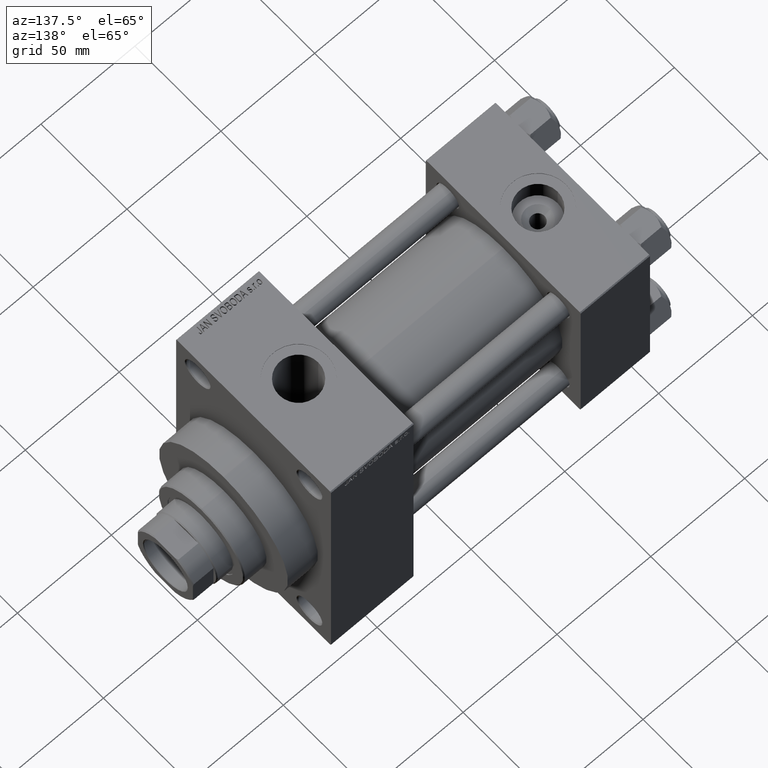
[diagram: clean part render]
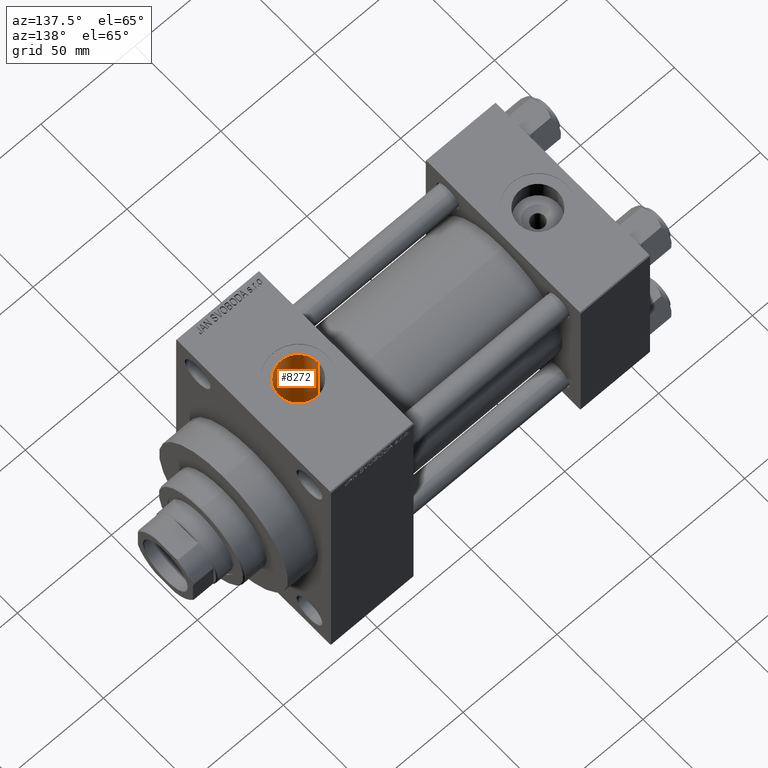
[diagram: same view with one face highlighted and labeled with its STEP entity id]
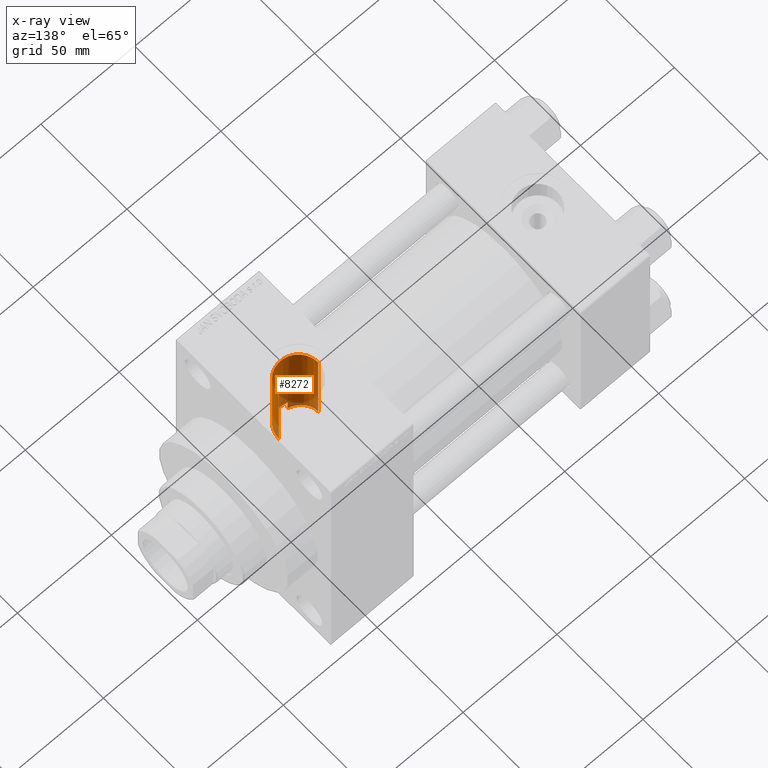
[diagram: x-ray of the same camera — body ghosted, the highlighted face saturated]
A machine part, auxiliary view. The second image highlights one B-rep face of the part: STEP entity #8272.
The next image is the same camera in x-ray: the body ghosted, the highlighted face saturated — about 13% of this face is hidden behind the body in this view.
In plain terms, the highlighted cylindrical surface (edge-blend (fillet) strip) has radius 10.48 mm, axis along (0, 0, -1).
Its self-contained STEP definition (entity closure, byte-faithful):
#1368 = CARTESIAN_POINT ( 'NONE',  ( 156.4799999999999898, -0.4140493469419965211, 30.00000000000001066 ) ) ;
#1399 = ORIENTED_EDGE ( 'NONE', *, *, #35483, .T. ) ;
#1497 = ORIENTED_EDGE ( 'NONE', *, *, #37592, .T. ) ;
#1860 = CARTESIAN_POINT ( 'NONE',  ( 151.8407164529724014, -8.711045480795162277, 28.70853818005239333 ) ) ;
#2327 = CARTESIAN_POINT ( 'NONE',  ( 149.6511764337021475, -9.831921411942651901, 28.34362233849842738 ) ) ;
#3301 = CARTESIAN_POINT ( 'NONE',  ( 142.2166163324468187, -9.788752968036769531, 23.00467774806669397 ) ) ;
#3528 = CARTESIAN_POINT ( 'NONE',  ( 135.9569663818569154, -3.007160148706864433, 24.81987104649663323 ) ) ;
#4183 = VERTEX_POINT ( 'NONE', #16381 ) ;
#4459 = CARTESIAN_POINT ( 'NONE',  ( 136.9226781161778206, -5.266119555344893399, 24.44410166351153890 ) ) ;
#5511 = AXIS2_PLACEMENT_3D ( 'NONE', #16873, #13531, #13764 ) ;
#5606 = VERTEX_POINT ( 'NONE', #8379 ) ;
#7109 = CARTESIAN_POINT ( 'NONE',  ( 135.8813829677837077, -2.742400269040758065, 24.85060264423316667 ) ) ;
#7507 = DIRECTION ( 'NONE',  ( -1.000000000000000000, 0.000000000000000000, 0.000000000000000000 ) ) ;
#8272 = ADVANCED_FACE ( 'NONE', ( #29719 ), #40469, .F. ) ;
#8379 = CARTESIAN_POINT ( 'NONE',  ( 156.4799999999999613, 3.673940397618681979E-15, 30.00000000000000000 ) ) ;
#8790 = CARTESIAN_POINT ( 'NONE',  ( 155.9688766884319193, -3.259248874892655579, 29.82498403132066755 ) ) ;
#8870 = VERTEX_POINT ( 'NONE', #14572 ) ;
#9248 = EDGE_CURVE ( 'NONE', #20263, #10663, #37874, .T. ) ;
#9265 = CARTESIAN_POINT ( 'NONE',  ( 146.8323486893805239, -10.48013219117957107, 28.11025684355166376 ) ) ;
#10241 = CARTESIAN_POINT ( 'NONE',  ( 141.7027284824027618, -9.574030923381073421, 23.09567255457320556 ) ) ;
#10663 = VERTEX_POINT ( 'NONE', #39966 ) ;
#10674 = CARTESIAN_POINT ( 'NONE',  ( 144.3547903624770186, -10.35843936797069453, 28.15511119385354988 ) ) ;
#11173 = CARTESIAN_POINT ( 'NONE',  ( 137.2133851667944100, -5.737667069548111343, 24.33689057242902365 ) ) ;
#12102 = CARTESIAN_POINT ( 'NONE',  ( 142.7400000000000091, -9.960060240781688279, 93.79999999999996874 ) ) ;
#12299 = VECTOR ( 'NONE', #21123, 1000.000000000000000 ) ;
#12612 = CARTESIAN_POINT ( 'NONE',  ( 152.4991569451228770, -8.231478667600764965, 28.84970080865382513 ) ) ;
#13531 = DIRECTION ( 'NONE',  ( -0.000000000000000000, -0.000000000000000000, -1.000000000000000000 ) ) ;
#13677 = VECTOR ( 'NONE', #17934, 1000.000000000000000 ) ;
#13764 = DIRECTION ( 'NONE',  ( 1.000000000000000000, 0.000000000000000000, 0.000000000000000000 ) ) ;
#13793 = CARTESIAN_POINT ( 'NONE',  ( 143.1356366639054443, -10.08955499213376861, 28.25278262901559145 ) ) ;
#14277 = CARTESIAN_POINT ( 'NONE',  ( 138.9710119791482157, -7.792124981740101042, 23.75802442794438107 ) ) ;
#14572 = CARTESIAN_POINT ( 'NONE',  ( 135.5199999999999818, -1.094803260394251466E-14, 70.79999999999996874 ) ) ;
#15210 = CARTESIAN_POINT ( 'NONE',  ( 139.3891897638273178, -8.150065112751539331, 23.63667431967813215 ) ) ;
#15614 = EDGE_CURVE ( 'NONE', #8870, #4183, #24466, .T. ) ;
#15937 = CARTESIAN_POINT ( 'NONE',  ( 156.2826880867322359, -2.065458053724753107, 29.93150493033226311 ) ) ;
#16381 = CARTESIAN_POINT ( 'NONE',  ( 135.5199999999999818, 3.061579607129328475E-15, 25.00000000000000000 ) ) ;
#16425 = CARTESIAN_POINT ( 'NONE',  ( 150.4065122839481603, -9.517374506241294441, 28.45078537450224587 ) ) ;
#16655 = CARTESIAN_POINT ( 'NONE',  ( 156.3561768723853049, -1.659168348792957381, 29.95693324364475529 ) ) ;
#16873 = CARTESIAN_POINT ( 'NONE',  ( 145.9999999999999716, -1.094803260394251466E-14, 70.79999999999996874 ) ) ;
#17141 = CARTESIAN_POINT ( 'NONE',  ( 143.5376865130923250, -10.19514556951083861, 28.21465150049998627 ) ) ;
#17459 = LINE ( 'NONE', #35383, #13677 ) ;
#17476 = B_SPLINE_CURVE_WITH_KNOTS ( 'NONE', 3,
 ( #20714, #1368, #20245, #16655, #15937, #27405, #8790, #20008, #31211, #45309, #31457, #46017, #19756, #45769, #12612, #1860, #20471, #27179, #16425, #2327, #30975, #41963, #45534, #9265, #23825, #38388, #10674, #17141, #13793, #36221 ),
 .UNSPECIFIED., .F., .F.,
 ( 4, 2, 2, 2, 2, 2, 2, 2, 2, 2, 2, 2, 2, 2, 4 ),
 ( 0.01983178583558413421, 0.02107005794959061068, 0.02230833006359708715, 0.02354660217760356014, 0.02478487429161003661, 0.02726141851962302770, 0.02849969063362952498, 0.02973796274763602226, 0.03097623486164251608, 0.03221450697564900989, 0.03345277908965550717, 0.03469105120366200445, 0.03716759543167499208, 0.03840586754568153099, 0.03964413965968806991 ),
 .UNSPECIFIED. ) ;
#17713 = EDGE_CURVE ( 'NONE', #46773, #8870, #36028, .T. ) ;
#17934 = DIRECTION ( 'NONE',  ( 0.000000000000000000, 0.000000000000000000, -1.000000000000000000 ) ) ;
#18085 = CARTESIAN_POINT ( 'NONE',  ( 135.5200000000000387, -0.5526487399564696812, 25.00000000000001066 ) ) ;
#18087 = CARTESIAN_POINT ( 'NONE',  ( 156.4799999999999613, -9.664602758436089169E-15, 70.79999999999996874 ) ) ;
#18322 = CARTESIAN_POINT ( 'NONE',  ( 136.2133645239136399, -3.788497290311537036, 24.71686331191869357 ) ) ;
#19756 = CARTESIAN_POINT ( 'NONE',  ( 153.4108071772772632, -7.421314247701545241, 29.06898203862668240 ) ) ;
#20008 = CARTESIAN_POINT ( 'NONE',  ( 155.6812555715533790, -4.034166111592121240, 29.73008374493930717 ) ) ;
#20245 = CARTESIAN_POINT ( 'NONE',  ( 156.4550640607019432, -0.8335913317594011440, 29.99126230196789322 ) ) ;
#20263 = VERTEX_POINT ( 'NONE', #28890 ) ;
#20471 = CARTESIAN_POINT ( 'NONE',  ( 151.4955340743379679, -8.933090684329158648, 28.63992046840855821 ) ) ;
#20714 = CARTESIAN_POINT ( 'NONE',  ( 156.4799999999999613, 3.673940397618681979E-15, 30.00000000000000000 ) ) ;
#20738 = CARTESIAN_POINT ( 'NONE',  ( 140.7309451898282191, -9.075553538226481365, 23.29606161660610653 ) ) ;
#21123 = DIRECTION ( 'NONE',  ( 0.000000000000000000, 0.000000000000000000, -1.000000000000000000 ) ) ;
#22142 = CARTESIAN_POINT ( 'NONE',  ( 138.2050283705145830, -7.025831027277330776, 23.99580452550002363 ) ) ;
#22323 = DIRECTION ( 'NONE',  ( 0.000000000000000000, 0.000000000000000000, -1.000000000000000000 ) ) ;
#22383 = CARTESIAN_POINT ( 'NONE',  ( 135.5199999999999818, 3.061579607129328475E-15, 25.00000000000000000 ) ) ;
#22611 = CARTESIAN_POINT ( 'NONE',  ( 136.4236355937511007, -4.292206019337017509, 24.63377942571623791 ) ) ;
#23825 = CARTESIAN_POINT ( 'NONE',  ( 146.0079132330771188, -10.51264281222109886, 28.09784841831593738 ) ) ;
#24466 = LINE ( 'NONE', #39739, #12299 ) ;
#25649 = EDGE_LOOP ( 'NONE', ( #26198, #1399, #1497, #32741, #40375, #43538 ) ) ;
#26198 = ORIENTED_EDGE ( 'NONE', *, *, #17713, .F. ) ;
#27179 = CARTESIAN_POINT ( 'NONE',  ( 150.7754301067500080, -9.337894368229036957, 28.51050477243453685 ) ) ;
#27405 = CARTESIAN_POINT ( 'NONE',  ( 156.0890390176182621, -2.865498728266687500, 29.86553233084090664 ) ) ;
#28890 = CARTESIAN_POINT ( 'NONE',  ( 142.7400000000000091, -9.960060240781688279, 22.93026820601974336 ) ) ;
#29719 = FACE_OUTER_BOUND ( 'NONE', #25649, .T. ) ;
#30975 = CARTESIAN_POINT ( 'NONE',  ( 149.2647576281308091, -9.966984633129870375, 28.29617465522276731 ) ) ;
#31211 = CARTESIAN_POINT ( 'NONE',  ( 155.5132943898857718, -4.415432476193858591, 29.67559266697256604 ) ) ;
#31457 = CARTESIAN_POINT ( 'NONE',  ( 154.4977574635254882, -6.188339515081466402, 29.36182159556008742 ) ) ;
#32634 = CARTESIAN_POINT ( 'NONE',  ( 137.8536174240124410, -6.615275848649993407, 24.11313317637567977 ) ) ;
#32741 = ORIENTED_EDGE ( 'NONE', *, *, #9248, .F. ) ;
#35302 = CARTESIAN_POINT ( 'NONE',  ( 140.2686167523512211, -8.790768987372251431, 23.40594614296279730 ) ) ;
#35383 = CARTESIAN_POINT ( 'NONE',  ( 156.4799999999999613, -9.664602758436089169E-15, 93.79999999999996874 ) ) ;
#35483 = EDGE_CURVE ( 'NONE', #46773, #5606, #17459, .T. ) ;
#35852 = B_SPLINE_CURVE_WITH_KNOTS ( 'NONE', 3,
 ( #42940, #3301, #10241, #20738, #35302, #15210, #14277, #22142, #32634, #11173, #4459, #22611, #18322, #3528, #7109, #47197, #40535, #44332, #18085, #22383 ),
 .UNSPECIFIED., .F., .F.,
 ( 4, 2, 2, 2, 2, 2, 2, 2, 2, 4 ),
 ( 0.01988964932192574531, 0.02154756030224158278, 0.02320547128255742025, 0.02486338226287326120, 0.02652129324318909867, 0.02817920422350493614, 0.02983711520382077709, 0.03066607069397869062, 0.03149502618413661109, 0.03315293716445244510 ),
 .UNSPECIFIED. ) ;
#36028 = CIRCLE ( 'NONE', #5511, 10.47999999999998977 ) ;
#36221 = CARTESIAN_POINT ( 'NONE',  ( 142.7400000000000091, -9.960060240781688279, 28.29836037653064906 ) ) ;
#37170 = DIRECTION ( 'NONE',  ( -0.000000000000000000, -0.000000000000000000, 1.000000000000000000 ) ) ;
#37592 = EDGE_CURVE ( 'NONE', #5606, #10663, #17476, .T. ) ;
#37874 = LINE ( 'NONE', #12102, #41078 ) ;
#38388 = CARTESIAN_POINT ( 'NONE',  ( 144.7699339040234747, -10.41578934976507043, 28.13383227326702496 ) ) ;
#39739 = CARTESIAN_POINT ( 'NONE',  ( 135.5199999999999818, -1.094803260394251466E-14, 93.79999999999996874 ) ) ;
#39966 = CARTESIAN_POINT ( 'NONE',  ( 142.7400000000000091, -9.960060240781688279, 28.29836037653064906 ) ) ;
#40375 = ORIENTED_EDGE ( 'NONE', *, *, #43203, .T. ) ;
#40469 = CYLINDRICAL_SURFACE ( 'NONE', #42620, 10.47999999999998977 ) ;
#40535 = CARTESIAN_POINT ( 'NONE',  ( 135.6952564760870530, -1.928778934517586752, 24.92700825772722695 ) ) ;
#41078 = VECTOR ( 'NONE', #37170, 1000.000000000000000 ) ;
#41963 = CARTESIAN_POINT ( 'NONE',  ( 148.4739236950474321, -10.19211099814792476, 28.21586709986686969 ) ) ;
#42620 = AXIS2_PLACEMENT_3D ( 'NONE', #44508, #22323, #7507 ) ;
#42940 = CARTESIAN_POINT ( 'NONE',  ( 142.7400000000000091, -9.960060240781688279, 22.93026820601974336 ) ) ;
#43203 = EDGE_CURVE ( 'NONE', #20263, #4183, #35852, .T. ) ;
#43538 = ORIENTED_EDGE ( 'NONE', *, *, #15614, .F. ) ;
#44332 = CARTESIAN_POINT ( 'NONE',  ( 135.5634374036090151, -1.103933992171576728, 24.98169420149659103 ) ) ;
#44508 = CARTESIAN_POINT ( 'NONE',  ( 145.9999999999999716, -1.094803260394251466E-14, 93.79999999999996874 ) ) ;
#45309 = CARTESIAN_POINT ( 'NONE',  ( 154.9516850616486749, -5.511024492678208375, 29.49874548845620481 ) ) ;
#45534 = CARTESIAN_POINT ( 'NONE',  ( 148.0676511321232169, -10.28246626870991953, 28.18289933756998877 ) ) ;
#45769 = CARTESIAN_POINT ( 'NONE',  ( 152.8130789427703746, -7.973576581528548424, 28.92237366509943186 ) ) ;
#46017 = CARTESIAN_POINT ( 'NONE',  ( 153.6953313842686839, -7.126116182886358175, 29.14312091195553123 ) ) ;
#46773 = VERTEX_POINT ( 'NONE', #18087 ) ;
#47197 = CARTESIAN_POINT ( 'NONE',  ( 135.7506109030364030, -2.203904040410059384, 24.90413656399007891 ) ) ;